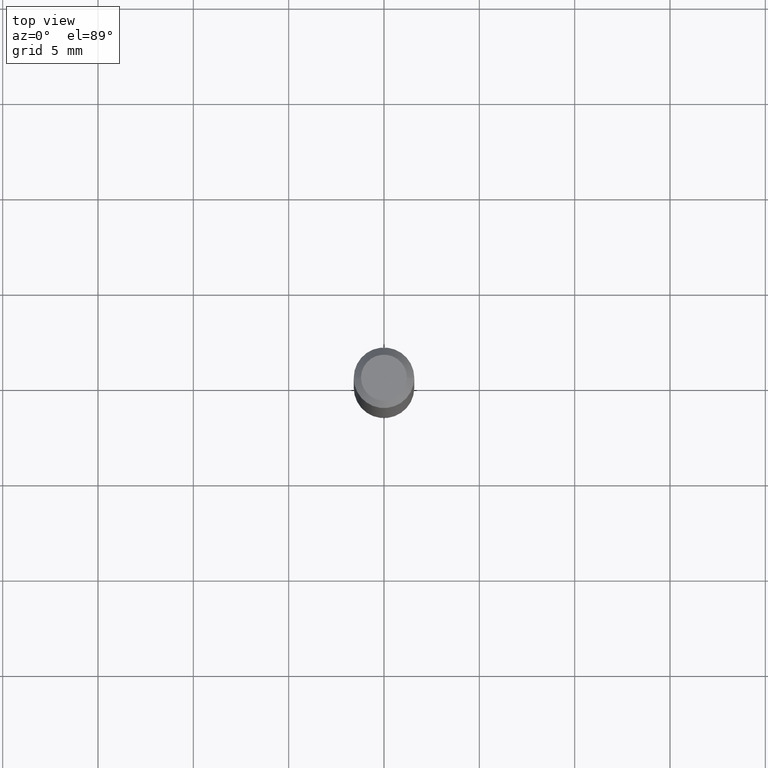
[diagram: clean part render]
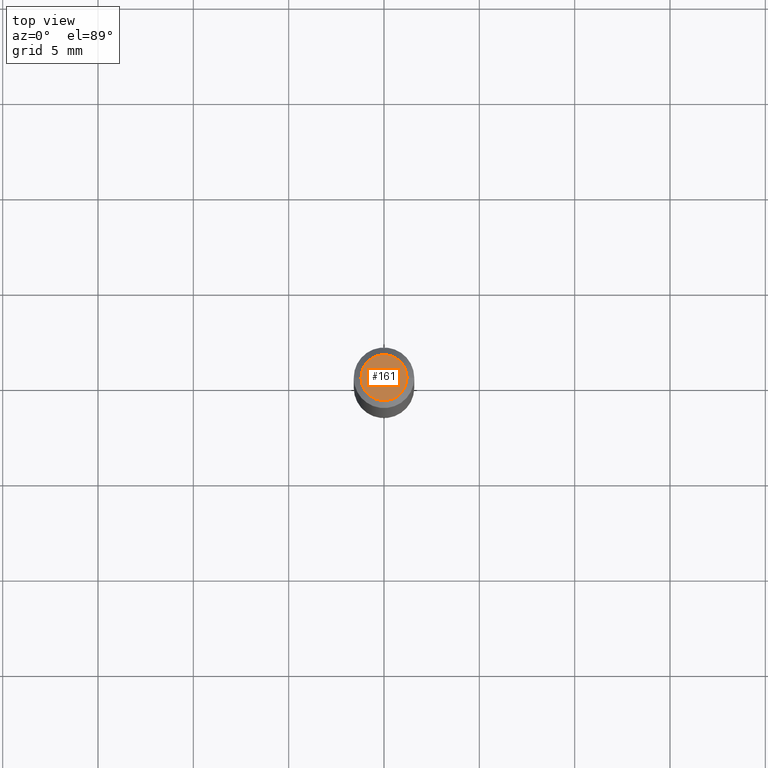
[diagram: same view with one face highlighted and labeled with its STEP entity id]
A machine part, top view. The second image highlights one B-rep face of the part: STEP entity #161.
In plain terms, the highlighted planar face has unit normal (0, -0, -1).
Its self-contained STEP definition (entity closure, byte-faithful):
#30 = FACE_OUTER_BOUND ( 'NONE', #196, .T. ) ;
#39 = VERTEX_POINT ( 'NONE', #93 ) ;
#53 = EDGE_CURVE ( 'NONE', #265, #39, #257, .T. ) ;
#80 = DIRECTION ( 'NONE',  ( -2.445468806185136597E-29, 3.491481338843145583E-15, 1.000000000000000000 ) ) ;
#93 = CARTESIAN_POINT ( 'NONE',  ( -0.04750000000000000749, 3.578768372314221353E-16, 2.731847993664239060E-16 ) ) ;
#110 = DIRECTION ( 'NONE',  ( 1.000000000000000000, -6.982962677686266711E-15, 4.852736867747365086E-29 ) ) ;
#143 = PLANE ( 'NONE',  #450 ) ;
#161 = ADVANCED_FACE ( 'NONE', ( #30 ), #143, .F. ) ;
#196 = EDGE_LOOP ( 'NONE', ( #431, #503 ) ) ;
#223 = DIRECTION ( 'NONE',  ( 2.438088387897960049E-29, -3.491481338843145188E-15, -1.000000000000000000 ) ) ;
#246 = AXIS2_PLACEMENT_3D ( 'NONE', #252, #409, #488 ) ;
#248 = CIRCLE ( 'NONE', #358, 0.04750000000000000749 ) ;
#252 = CARTESIAN_POINT ( 'NONE',  ( -6.680649051745406845E-45, 9.538196290434862081E-31, 2.731847993664263218E-16 ) ) ;
#257 = CIRCLE ( 'NONE', #246, 0.04750000000000000749 ) ;
#258 = CARTESIAN_POINT ( 'NONE',  ( 0.04750000000000000749, -4.035134999187568762E-16, 2.731847993664288856E-16 ) ) ;
#265 = VERTEX_POINT ( 'NONE', #258 ) ;
#358 = AXIS2_PLACEMENT_3D ( 'NONE', #476, #80, #110 ) ;
#383 = DIRECTION ( 'NONE',  ( -1.000000000000000000, 6.982962677686265922E-15, -4.876176775795935793E-29 ) ) ;
#409 = DIRECTION ( 'NONE',  ( -2.445468806185136597E-29, 3.491481338843145583E-15, 1.000000000000000000 ) ) ;
#431 = ORIENTED_EDGE ( 'NONE', *, *, #470, .T. ) ;
#450 = AXIS2_PLACEMENT_3D ( 'NONE', #500, #223, #383 ) ;
#470 = EDGE_CURVE ( 'NONE', #39, #265, #248, .T. ) ;
#476 = CARTESIAN_POINT ( 'NONE',  ( -6.680649051745406845E-45, 9.538196290434862081E-31, 2.731847993664263218E-16 ) ) ;
#488 = DIRECTION ( 'NONE',  ( 1.000000000000000000, -6.982962677686266711E-15, 4.852736867747365086E-29 ) ) ;
#500 = CARTESIAN_POINT ( 'NONE',  ( 3.316907271900976589E-16, 0.04750000000000000749, -2.925296391183627249E-17 ) ) ;
#503 = ORIENTED_EDGE ( 'NONE', *, *, #53, .T. ) ;